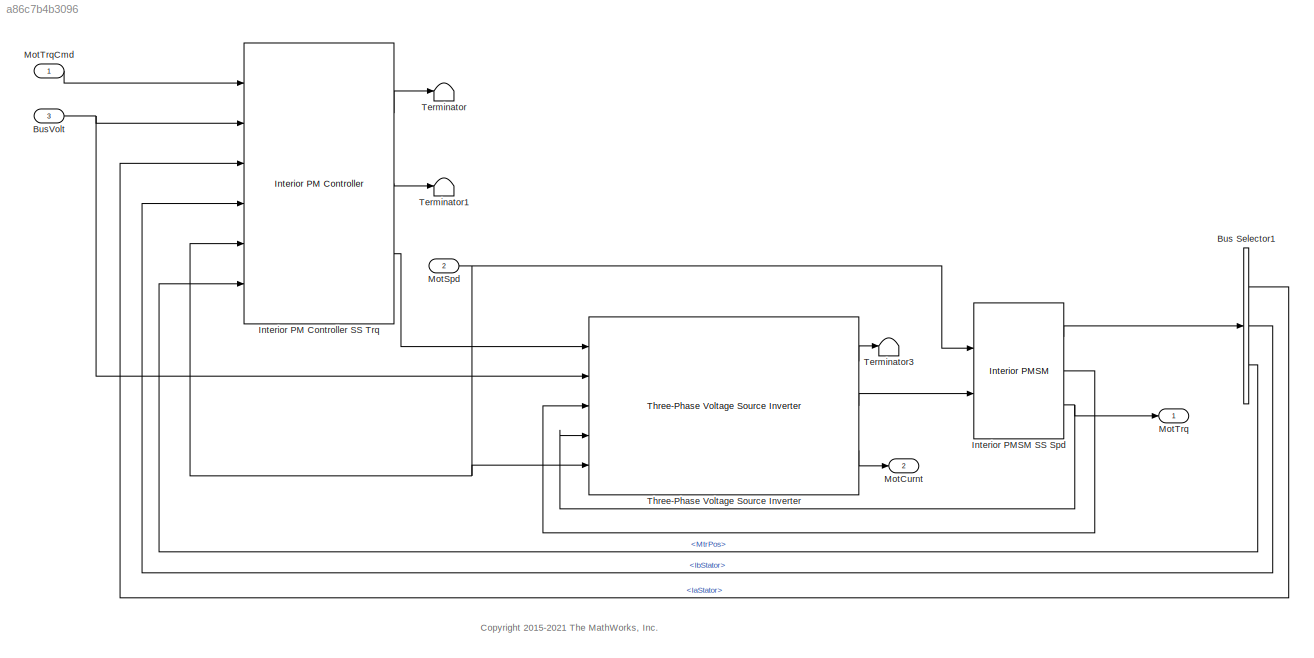
MODEL slx_a86c7b4b3096
KIND model
CONFIG AbsTol = auto
CONFIG EnableMultiTasking = on
CONFIG FixedStep = auto
CONFIG MaxStep = auto
CONFIG MinStep = auto
CONFIG RelTol = 1e-3
CONFIG SampleTimeConstraint = Unconstrained
CONFIG SolverName = VariableStepAuto
CONFIG StartTime = 0.0
CONFIG StopTime = inf
WORKSPACE source: mxarray member
WORKSPACE EV_current: Simulink.Parameter (value not decoded)
WORKSPACE EV_motion: Simulink.Parameter (value not decoded)
WORKSPACE EV_sf: Simulink.Parameter (value not decoded)
WORKSPACE Fs: Simulink.Parameter (value not decoded)
WORKSPACE Fv: Simulink.Parameter (value not decoded)
WORKSPACE Jcomp: Simulink.Parameter (value not decoded)
WORKSPACE Ki: Simulink.Parameter (value not decoded)
WORKSPACE Kisa: Simulink.Parameter (value not decoded)
WORKSPACE Kp_d: Simulink.Parameter (value not decoded)
WORKSPACE Kp_q: Simulink.Parameter (value not decoded)
WORKSPACE Ksa: Simulink.Parameter (value not decoded)
WORKSPACE Ksf: Simulink.Parameter (value not decoded)
WORKSPACE Ld: Simulink.Parameter (value not decoded)
WORKSPACE Ldq: Simulink.Parameter (value not decoded)
WORKSPACE Lq: Simulink.Parameter (value not decoded)
WORKSPACE Mechanical: Simulink.Parameter (value not decoded)
WORKSPACE P: Simulink.Parameter (value not decoded)
WORKSPACE PolePairs: Simulink.Parameter (value not decoded)
WORKSPACE Rs: Simulink.Parameter (value not decoded)
WORKSPACE T_max: Simulink.Parameter (value not decoded)
WORKSPACE T_mtpa: Simulink.Parameter (value not decoded)
WORKSPACE ba: Simulink.Parameter (value not decoded)
WORKSPACE id_mtpa: Simulink.Parameter (value not decoded)
WORKSPACE idq0: Simulink.Parameter (value not decoded)
WORKSPACE idq_limits: Simulink.Parameter (value not decoded)
WORKSPACE iq_mtpa: Simulink.Parameter (value not decoded)
WORKSPACE lambda_pm: Simulink.Parameter (value not decoded)
WORKSPACE mechanical: Simulink.Parameter (value not decoded)
WORKSPACE omega_init: Simulink.Parameter (value not decoded)
WORKSPACE theta_init: Simulink.Parameter (value not decoded)
BLOCK [BusSelector] Bus Selector1
  OutputSignals = IaStator,IbStator,MtrPos
  Ports = [1, 3]
BLOCK [Inport] BusVolt
  Port = 3
BLOCK [Reference] Interior PM Controller SS Trq  REF=autolibmotorctrlr/Interior PM Controller
  Ports = [6, 3]
  SourceBlock = autolibmotorctrlr/Interior PM Controller
  SourceProductBaseCode = PW
  SourceType = Interior PM Controller
BLOCK [Reference] Interior PMSM SS Spd  REF=autolibpmsminterior/Interior PMSM
  Ports = [2, 3]
  SourceBlock = autolibpmsminterior/Interior PMSM
  SourceProductBaseCode = PW,DR,MT,VE
  SourceType = Interior PMSM
BLOCK [Outport] MotCurnt
  Port = 2
  VectorParamsAs1DForOutWhenUnconnected = off
BLOCK [Inport] MotSpd
  Port = 2
BLOCK [Outport] MotTrq
  VectorParamsAs1DForOutWhenUnconnected = off
BLOCK [Inport] MotTrqCmd
BLOCK [Terminator] Terminator
BLOCK [Terminator] Terminator1
BLOCK [Terminator] Terminator3
BLOCK [Reference] Three-Phase Voltage Source Inverter  REF=autolibinverter/Three-Phase Voltage Source Inverter
  Ports = [5, 3]
  SourceBlock = autolibinverter/Three-Phase Voltage Source Inverter
  SourceProductBaseCode = PW,DR,MT,VE
  SourceType = Three-Phase Voltage Source Inverter
ANNOTATION (root): <copyright redacted>
LINE Bus Selector1:1 -> Interior PM Controller SS Trq:3
LINE Bus Selector1:2 -> Interior PM Controller SS Trq:4
LINE Bus Selector1:3 -> Interior PM Controller SS Trq:6
NET BusVolt:1 -> Interior PM Controller SS Trq:2, Three-Phase Voltage Source Inverter:2
LINE Interior PM Controller SS Trq:1 -> Terminator:1
LINE Interior PM Controller SS Trq:2 -> Terminator1:1
LINE Interior PM Controller SS Trq:3 -> Three-Phase Voltage Source Inverter:1
LINE Interior PMSM SS Spd:1 -> Bus Selector1:1
LINE Interior PMSM SS Spd:2 -> Three-Phase Voltage Source Inverter:3
NET Interior PMSM SS Spd:3 -> MotTrq:1, Three-Phase Voltage Source Inverter:4
NET MotSpd:1 -> Interior PM Controller SS Trq:5, Interior PMSM SS Spd:1, Three-Phase Voltage Source Inverter:5
LINE MotTrqCmd:1 -> Interior PM Controller SS Trq:1
LINE Three-Phase Voltage Source Inverter:1 -> Terminator3:1
LINE Three-Phase Voltage Source Inverter:2 -> Interior PMSM SS Spd:2
LINE Three-Phase Voltage Source Inverter:3 -> MotCurnt:1
note: NET lines group one-source signal fan-out (src -> all destinations, sorted); 1:1 wires keep LINE
